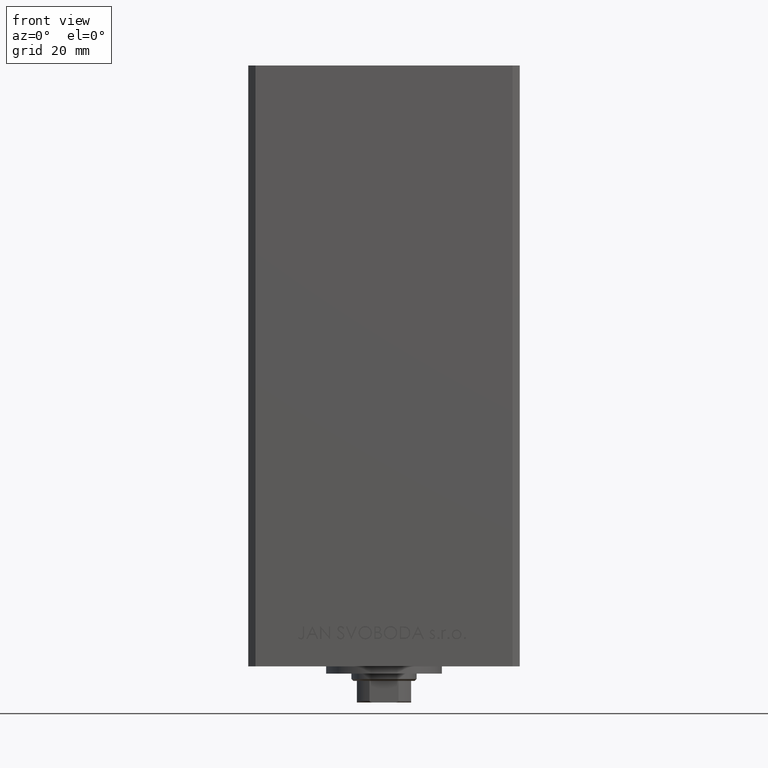
[diagram: clean part render]
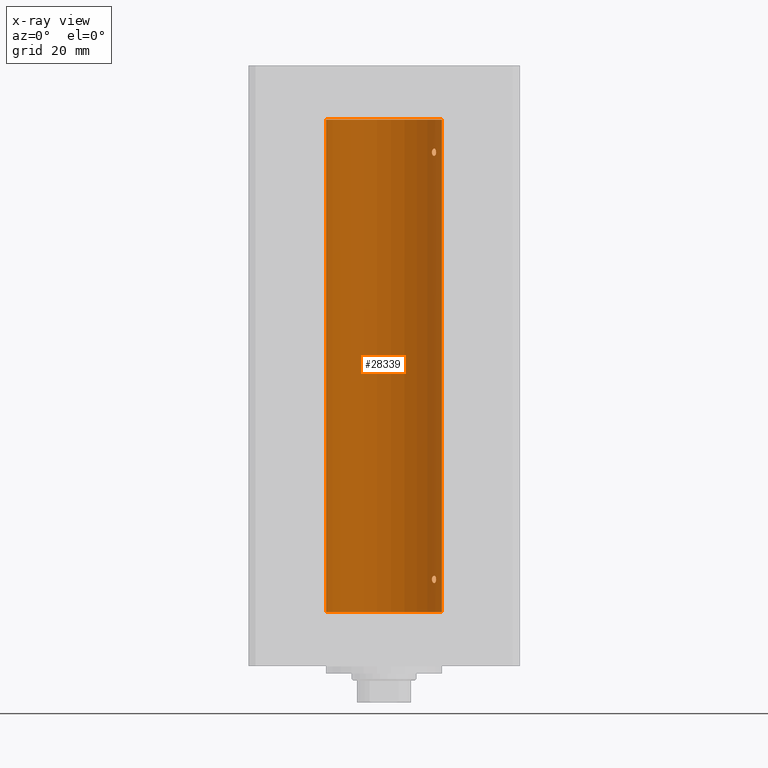
[diagram: x-ray — body ghosted, one internal face saturated and labeled with its STEP entity id]
A machine part, front view, then the same camera in x-ray: the body is ghosted and one INTERNAL B-rep face — a face not visible from any outside direction — is saturated and labeled: STEP entity #28339.
In plain terms, the highlighted cylindrical surface (partial cylindrical patch) has radius 16 mm, axis along (-0, -0, -1).
Its self-contained STEP definition (entity closure, byte-faithful):
#298 = CARTESIAN_POINT ( 'NONE',  ( 13.32447566991143795, 8.857922402414491359, 127.5314381199038678 ) ) ;
#460 = CARTESIAN_POINT ( 'NONE',  ( 13.32443414199768306, 8.857985377928109472, 126.4686058303161360 ) ) ;
#807 = CARTESIAN_POINT ( 'NONE',  ( 13.37722806521492025, 8.778496895713756132, 9.640492215702138878 ) ) ;
#1031 = CARTESIAN_POINT ( 'NONE',  ( 14.12440581436493048, 7.519967855344577679, 127.9168456675479888 ) ) ;
#1674 = ORIENTED_EDGE ( 'NONE', *, *, #7539, .F. ) ;
#4513 = CARTESIAN_POINT ( 'NONE',  ( 13.98853479819183043, 7.771757428685177160, 128.0036593920347059 ) ) ;
#4521 = CARTESIAN_POINT ( 'NONE',  ( 13.56526576050683452, 8.485384079562178883, 8.116990538131117816 ) ) ;
#4763 = FACE_BOUND ( 'NONE', #5308, .T. ) ;
#5308 = EDGE_LOOP ( 'NONE', ( #7697, #28807 ) ) ;
#5501 = CARTESIAN_POINT ( 'NONE',  ( 13.98799506618804855, 7.768796316246572964, 8.018907818619863903 ) ) ;
#6464 = ORIENTED_EDGE ( 'NONE', *, *, #32103, .F. ) ;
#6949 = CARTESIAN_POINT ( 'NONE',  ( 13.56526576050684341, 8.485384079562173554, 126.1169905381311054 ) ) ;
#7047 = CARTESIAN_POINT ( 'NONE',  ( 14.38749456993835807, 6.999999999999894307, 9.141106977037484427 ) ) ;
#7539 = EDGE_CURVE ( 'NONE', #20153, #15843, #24188, .T. ) ;
#7678 = CARTESIAN_POINT ( 'NONE',  ( 14.38749456993875775, 6.999999999998772537, 126.9999999999994742 ) ) ;
#7697 = ORIENTED_EDGE ( 'NONE', *, *, #35235, .F. ) ;
#7804 = CARTESIAN_POINT ( 'NONE',  ( 0.000000000000000000, 0.000000000000000000, 136.0000000000000000 ) ) ;
#8250 = CARTESIAN_POINT ( 'NONE',  ( 14.36932461189096877, 7.037242368448794139, 8.720713977669424466 ) ) ;
#8261 = CARTESIAN_POINT ( 'NONE',  ( 13.98853479819183043, 7.771757428685174496, 10.00365939203466681 ) ) ;
#8491 = FACE_BOUND ( 'NONE', #30419, .T. ) ;
#8497 = CARTESIAN_POINT ( 'NONE',  ( 14.38749456993875953, 6.999999999998769873, 8.999999999999467093 ) ) ;
#8633 = ORIENTED_EDGE ( 'NONE', *, *, #16483, .T. ) ;
#8746 = CYLINDRICAL_SURFACE ( 'NONE', #34082, 16.00000000000000000 ) ;
#8993 = CARTESIAN_POINT ( 'NONE',  ( 13.92009581174526822, 7.889943515799717311, 7.998460909213807035 ) ) ;
#9242 = CARTESIAN_POINT ( 'NONE',  ( 13.37714181818049575, 8.778635597591465611, 8.359554766746297716 ) ) ;
#9829 = VERTEX_POINT ( 'NONE', #45489 ) ;
#10677 = CARTESIAN_POINT ( 'NONE',  ( 13.37714181818049752, 8.778635597591465611, 126.3595547667463137 ) ) ;
#10931 = CARTESIAN_POINT ( 'NONE',  ( 14.35867515080208001, 7.058999333127632170, 126.6544211985381452 ) ) ;
#11420 = CARTESIAN_POINT ( 'NONE',  ( 14.17516445690067606, 7.421373518623913590, 126.1736956655494453 ) ) ;
#11743 = CARTESIAN_POINT ( 'NONE',  ( 13.25022586032983973, 8.968609469449800642, 127.2832896389628985 ) ) ;
#11794 = DIRECTION ( 'NONE',  ( 1.000000000000000000, 0.000000000000000000, 0.000000000000000000 ) ) ;
#11988 = CARTESIAN_POINT ( 'NONE',  ( 14.38749456993828879, 7.000000000000026645, 8.929291109518763037 ) ) ;
#12250 = AXIS2_PLACEMENT_3D ( 'NONE', #37550, #22581, #42016 ) ;
#12410 = CARTESIAN_POINT ( 'NONE',  ( -16.00000000000000000, 0.000000000000000000, 0.000000000000000000 ) ) ;
#12532 = DIRECTION ( 'NONE',  ( -0.000000000000000000, 0.000000000000000000, 1.000000000000000000 ) ) ;
#12746 = CARTESIAN_POINT ( 'NONE',  ( 13.32447566991143439, 8.857922402414480700, 9.531438119903825168 ) ) ;
#14404 = ORIENTED_EDGE ( 'NONE', *, *, #20539, .T. ) ;
#14707 = LINE ( 'NONE', #33646, #17485 ) ;
#15176 = CARTESIAN_POINT ( 'NONE',  ( 13.25010819131476048, 8.968783812673565947, 126.7171986622837636 ) ) ;
#15698 = VERTEX_POINT ( 'NONE', #40438 ) ;
#15843 = VERTEX_POINT ( 'NONE', #12410 ) ;
#15972 = CARTESIAN_POINT ( 'NONE',  ( 14.31678893103185679, 7.143775209822727845, 127.5347800480706724 ) ) ;
#16483 = EDGE_CURVE ( 'NONE', #30636, #22858, #23122, .T. ) ;
#16503 = CARTESIAN_POINT ( 'NONE',  ( 13.55739033881265065, 8.499771822136686694, 9.902983336413296200 ) ) ;
#16735 = CARTESIAN_POINT ( 'NONE',  ( 0.000000000000000000, 0.000000000000000000, 136.0000000000000000 ) ) ;
#16742 = CARTESIAN_POINT ( 'NONE',  ( 14.17516445690067428, 7.421373518623910037, 8.173695665549439937 ) ) ;
#17485 = VECTOR ( 'NONE', #48858, 1000.000000000000000 ) ;
#17698 = CARTESIAN_POINT ( 'NONE',  ( -16.00000000000000000, 0.000000000000000000, 136.0000000000000000 ) ) ;
#18624 = CARTESIAN_POINT ( 'NONE',  ( 14.38749456993875953, 6.999999999998769873, 8.999999999999467093 ) ) ;
#18678 = EDGE_CURVE ( 'NONE', #20108, #9829, #41387, .T. ) ;
#18912 = CARTESIAN_POINT ( 'NONE',  ( 13.77746685470184218, 8.136441676695669756, 126.0017131429554667 ) ) ;
#19226 = CARTESIAN_POINT ( 'NONE',  ( 14.37260515874679001, 7.030802976542522842, 127.2824317985811149 ) ) ;
#19710 = CARTESIAN_POINT ( 'NONE',  ( 13.70635209652260400, 8.259251269739737111, 127.9961002086728570 ) ) ;
#19975 = CARTESIAN_POINT ( 'NONE',  ( 13.77746685470184040, 8.136441676695669756, 8.001713142955473757 ) ) ;
#20108 = VERTEX_POINT ( 'NONE', #38559 ) ;
#20153 = VERTEX_POINT ( 'NONE', #47273 ) ;
#20539 = EDGE_CURVE ( 'NONE', #22858, #15843, #35244, .T. ) ;
#21907 = ORIENTED_EDGE ( 'NONE', *, *, #45013, .F. ) ;
#22165 = CARTESIAN_POINT ( 'NONE',  ( 13.70633586603035958, 8.255576010093799155, 126.0253286105015320 ) ) ;
#22264 = CARTESIAN_POINT ( 'NONE',  ( 14.37260515874679534, 7.030802976542521954, 9.282431798581109561 ) ) ;
#22581 = DIRECTION ( 'NONE',  ( -0.000000000000000000, 0.000000000000000000, 1.000000000000000000 ) ) ;
#22858 = VERTEX_POINT ( 'NONE', #17698 ) ;
#23122 = CIRCLE ( 'NONE', #26332, 16.00000000000000000 ) ;
#23462 = CARTESIAN_POINT ( 'NONE',  ( 13.25010819131475159, 8.968783812673564171, 8.717198662283735189 ) ) ;
#23473 = CARTESIAN_POINT ( 'NONE',  ( 13.70635209652260222, 8.259251269739738888, 9.996100208672867637 ) ) ;
#23707 = CARTESIAN_POINT ( 'NONE',  ( 14.27601081693604357, 7.225489892961959981, 127.6464466749832383 ) ) ;
#23716 = CARTESIAN_POINT ( 'NONE',  ( 14.11701305531884287, 7.531808851198022126, 8.107366783090686368 ) ) ;
#24188 = CIRCLE ( 'NONE', #12250, 16.00000000000000000 ) ;
#24461 = CARTESIAN_POINT ( 'NONE',  ( 14.35867515080208356, 7.058999333127636611, 8.654421198538130966 ) ) ;
#26150 = CARTESIAN_POINT ( 'NONE',  ( 14.36932461189096522, 7.037242368448795915, 126.7207139776694333 ) ) ;
#26332 = AXIS2_PLACEMENT_3D ( 'NONE', #7804, #12532, #11794 ) ;
#26485 = CARTESIAN_POINT ( 'NONE',  ( 14.31678893103186390, 7.143775209822729622, 9.534780048070684799 ) ) ;
#26624 = CARTESIAN_POINT ( 'NONE',  ( 14.27574973237575229, 7.225997637813494912, 126.3530782107463466 ) ) ;
#27446 = CARTESIAN_POINT ( 'NONE',  ( 13.37722806521492913, 8.778496895713761461, 127.6404922157021673 ) ) ;
#27945 = FACE_OUTER_BOUND ( 'NONE', #41557, .T. ) ;
#28339 = ADVANCED_FACE ( 'NONE', ( #27945, #4763, #8491 ), #8746, .F. ) ;
#28807 = ORIENTED_EDGE ( 'NONE', *, *, #18678, .F. ) ;
#29876 = CARTESIAN_POINT ( 'NONE',  ( 13.92009581174527000, 7.889943515799715534, 125.9984609092137617 ) ) ;
#30419 = EDGE_LOOP ( 'NONE', ( #43674, #21907 ) ) ;
#30443 = CARTESIAN_POINT ( 'NONE',  ( 13.55739033881264888, 8.499771822136688471, 127.9029833364133140 ) ) ;
#30636 = VERTEX_POINT ( 'NONE', #34418 ) ;
#31681 = CARTESIAN_POINT ( 'NONE',  ( 13.22875655532295447, 8.999999999999998224, 8.999999999999994671 ) ) ;
#31691 = CARTESIAN_POINT ( 'NONE',  ( 13.22875655532295447, 8.999999999999998224, 8.999999999999994671 ) ) ;
#31738 = DIRECTION ( 'NONE',  ( -0.000000000000000000, -0.000000000000000000, -1.000000000000000000 ) ) ;
#31982 = CARTESIAN_POINT ( 'NONE',  ( -16.00000000000000000, 0.000000000000000000, 136.0000000000000000 ) ) ;
#32103 = EDGE_CURVE ( 'NONE', #30636, #20153, #14707, .T. ) ;
#32694 = EDGE_CURVE ( 'NONE', #15698, #36181, #41701, .T. ) ;
#33646 = CARTESIAN_POINT ( 'NONE',  ( 16.00000000000000000, 1.959434878635765131E-15, 136.0000000000000000 ) ) ;
#33872 = CARTESIAN_POINT ( 'NONE',  ( 14.38749456993829767, 7.000000000000029310, 126.9292911095187577 ) ) ;
#34082 = AXIS2_PLACEMENT_3D ( 'NONE', #16735, #39164, #35173 ) ;
#34117 = CARTESIAN_POINT ( 'NONE',  ( 13.22875655532295447, 8.999999999999998224, 126.8570262609357826 ) ) ;
#34418 = CARTESIAN_POINT ( 'NONE',  ( 16.00000000000000000, 1.959434878635765131E-15, 136.0000000000000000 ) ) ;
#35173 = DIRECTION ( 'NONE',  ( -1.000000000000000000, 0.000000000000000000, 0.000000000000000000 ) ) ;
#35180 = CARTESIAN_POINT ( 'NONE',  ( 14.31615587311060445, 7.145052533203043232, 8.462698705274526390 ) ) ;
#35235 = EDGE_CURVE ( 'NONE', #9829, #20108, #45669, .T. ) ;
#35244 = LINE ( 'NONE', #31982, #42343 ) ;
#36181 = VERTEX_POINT ( 'NONE', #18624 ) ;
#37469 = CARTESIAN_POINT ( 'NONE',  ( 14.27601081693604712, 7.225489892961965310, 9.646446674983275571 ) ) ;
#37550 = CARTESIAN_POINT ( 'NONE',  ( 0.000000000000000000, 0.000000000000000000, 0.000000000000000000 ) ) ;
#37621 = CARTESIAN_POINT ( 'NONE',  ( 14.31615587311060445, 7.145052533203036127, 126.4626987052745193 ) ) ;
#37955 = CARTESIAN_POINT ( 'NONE',  ( 14.38749456993835807, 6.999999999999901412, 127.1411069770375093 ) ) ;
#38559 = CARTESIAN_POINT ( 'NONE',  ( 14.38749456993875775, 6.999999999998772537, 126.9999999999994742 ) ) ;
#38671 = CARTESIAN_POINT ( 'NONE',  ( 14.38749456993875775, 6.999999999998772537, 126.9999999999994742 ) ) ;
#38681 = CARTESIAN_POINT ( 'NONE',  ( 14.38374727663542707, 7.007716049903074840, 8.857607929436484895 ) ) ;
#38938 = CARTESIAN_POINT ( 'NONE',  ( 13.25022586032984329, 8.968609469449802418, 9.283289638962903823 ) ) ;
#39164 = DIRECTION ( 'NONE',  ( -0.000000000000000000, -0.000000000000000000, -1.000000000000000000 ) ) ;
#39417 = CARTESIAN_POINT ( 'NONE',  ( 14.27574973237574696, 7.225997637813494023, 8.353078210746339494 ) ) ;
#39783 = B_SPLINE_CURVE_WITH_KNOTS ( 'NONE', 3,
 ( #41210, #7047, #22264, #26485, #37469, #48934, #8261, #23473, #16503, #807, #12746, #38938, #42181, #31691 ),
 .UNSPECIFIED., .F., .F.,
 ( 4, 2, 2, 2, 2, 2, 4 ),
 ( 0.003377516961122438259, 0.003798778705083848996, 0.004220040449045259733, 0.005062563936968083808, 0.005905087424890908751, 0.006326349168852319488, 0.006747610912813730225 ),
 .UNSPECIFIED. ) ;
#40438 = CARTESIAN_POINT ( 'NONE',  ( 13.22875655532295447, 8.999999999999998224, 8.999999999999994671 ) ) ;
#41108 = CARTESIAN_POINT ( 'NONE',  ( 13.49787029139620920, 8.591848682074020971, 126.1838145871425922 ) ) ;
#41210 = CARTESIAN_POINT ( 'NONE',  ( 14.38749456993875953, 6.999999999998769873, 8.999999999999467093 ) ) ;
#41387 = B_SPLINE_CURVE_WITH_KNOTS ( 'NONE', 3,
 ( #38671, #37955, #19226, #15972, #23707, #1031, #4513, #19710, #30443, #27446, #298, #11743, #46653, #45663 ),
 .UNSPECIFIED., .F., .F.,
 ( 4, 2, 2, 2, 2, 2, 4 ),
 ( 0.003377516961122436958, 0.003798778705083865476, 0.004220040449045293560, 0.005062563936968100288, 0.005905087424890907016, 0.006326349168852314284, 0.006747610912813719816 ),
 .UNSPECIFIED. ) ;
#41557 = EDGE_LOOP ( 'NONE', ( #6464, #8633, #14404, #1674 ) ) ;
#41701 = B_SPLINE_CURVE_WITH_KNOTS ( 'NONE', 3,
 ( #31681, #42919, #23462, #43165, #9242, #43409, #4521, #42667, #19975, #8993, #5501, #23716, #16742, #39417, #35180, #24461, #8250, #38681, #11988, #8497 ),
 .UNSPECIFIED., .F., .F.,
 ( 4, 2, 2, 2, 2, 2, 2, 2, 2, 4 ),
 ( 0.000000000000000000, 0.0004221896201403055413, 0.0008443792402806110826, 0.001266568860420916624, 0.001688758480561222165, 0.002110948100701527490, 0.002533137720841833248, 0.002955327340982138572, 0.003166422151052288633, 0.003377516961122438259 ),
 .UNSPECIFIED. ) ;
#41841 = CARTESIAN_POINT ( 'NONE',  ( 14.38374727663543062, 7.007716049903079281, 126.8576079294365400 ) ) ;
#42016 = DIRECTION ( 'NONE',  ( 1.000000000000000000, 0.000000000000000000, 0.000000000000000000 ) ) ;
#42181 = CARTESIAN_POINT ( 'NONE',  ( 13.22875655532295625, 9.000000000000000000, 9.142659515501296852 ) ) ;
#42343 = VECTOR ( 'NONE', #31738, 1000.000000000000000 ) ;
#42667 = CARTESIAN_POINT ( 'NONE',  ( 13.70633586603034715, 8.255576010093811590, 8.025328610501505366 ) ) ;
#42919 = CARTESIAN_POINT ( 'NONE',  ( 13.22875655532296157, 9.000000000000000000, 8.857026260935734641 ) ) ;
#43165 = CARTESIAN_POINT ( 'NONE',  ( 13.32443414199768839, 8.857985377928104143, 8.468605830316136007 ) ) ;
#43409 = CARTESIAN_POINT ( 'NONE',  ( 13.49787029139620920, 8.591848682074017418, 8.183814587142569152 ) ) ;
#43674 = ORIENTED_EDGE ( 'NONE', *, *, #32694, .F. ) ;
#45013 = EDGE_CURVE ( 'NONE', #36181, #15698, #39783, .T. ) ;
#45091 = CARTESIAN_POINT ( 'NONE',  ( 13.98799506618804855, 7.768796316246572964, 126.0189078186199083 ) ) ;
#45489 = CARTESIAN_POINT ( 'NONE',  ( 13.22875655532295802, 8.999999999999996447, 127.0000000000000000 ) ) ;
#45577 = CARTESIAN_POINT ( 'NONE',  ( 14.11701305531884465, 7.531808851198022126, 126.1073667830906686 ) ) ;
#45663 = CARTESIAN_POINT ( 'NONE',  ( 13.22875655532295802, 8.999999999999996447, 127.0000000000000000 ) ) ;
#45669 = B_SPLINE_CURVE_WITH_KNOTS ( 'NONE', 3,
 ( #49322, #34117, #15176, #460, #10677, #41108, #6949, #22165, #18912, #29876, #45091, #45577, #11420, #26624, #37621, #10931, #26150, #41841, #33872, #7678 ),
 .UNSPECIFIED., .F., .F.,
 ( 4, 2, 2, 2, 2, 2, 2, 2, 2, 4 ),
 ( 0.000000000000000000, 0.0004221896201403046197, 0.0008443792402806092395, 0.001266568860420913805, 0.001688758480561218479, 0.002110948100701523153, 0.002533137720841827610, 0.002955327340982132501, 0.003166422151052284729, 0.003377516961122436958 ),
 .UNSPECIFIED. ) ;
#46653 = CARTESIAN_POINT ( 'NONE',  ( 13.22875655532295625, 8.999999999999994671, 127.1426595155012933 ) ) ;
#47273 = CARTESIAN_POINT ( 'NONE',  ( 16.00000000000000000, 1.959434878635765131E-15, 0.000000000000000000 ) ) ;
#48858 = DIRECTION ( 'NONE',  ( -0.000000000000000000, -0.000000000000000000, -1.000000000000000000 ) ) ;
#48934 = CARTESIAN_POINT ( 'NONE',  ( 14.12440581436493225, 7.519967855344579455, 9.916845667547992349 ) ) ;
#49322 = CARTESIAN_POINT ( 'NONE',  ( 13.22875655532295802, 8.999999999999996447, 127.0000000000000000 ) ) ;